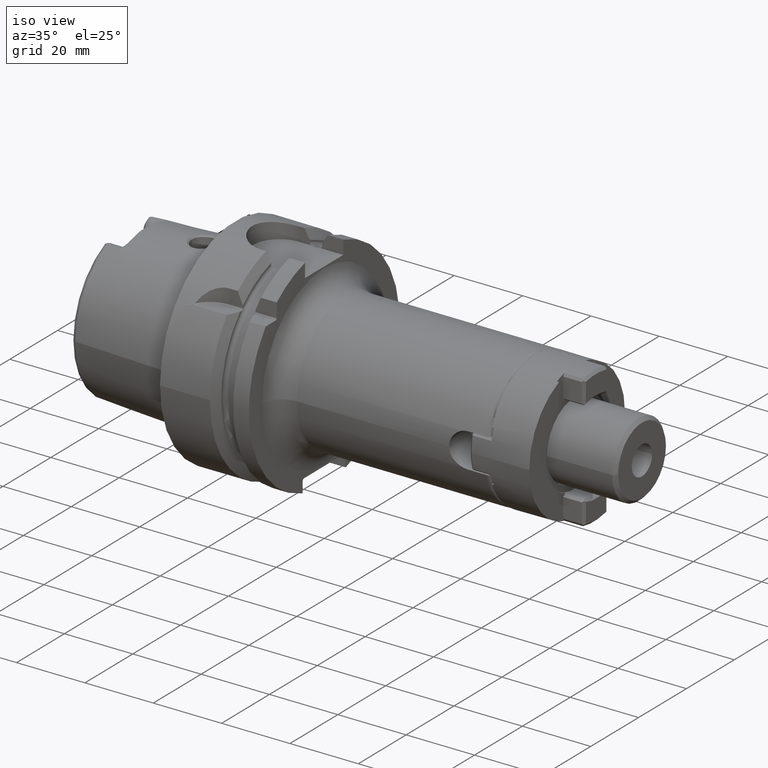
[diagram: clean part render]
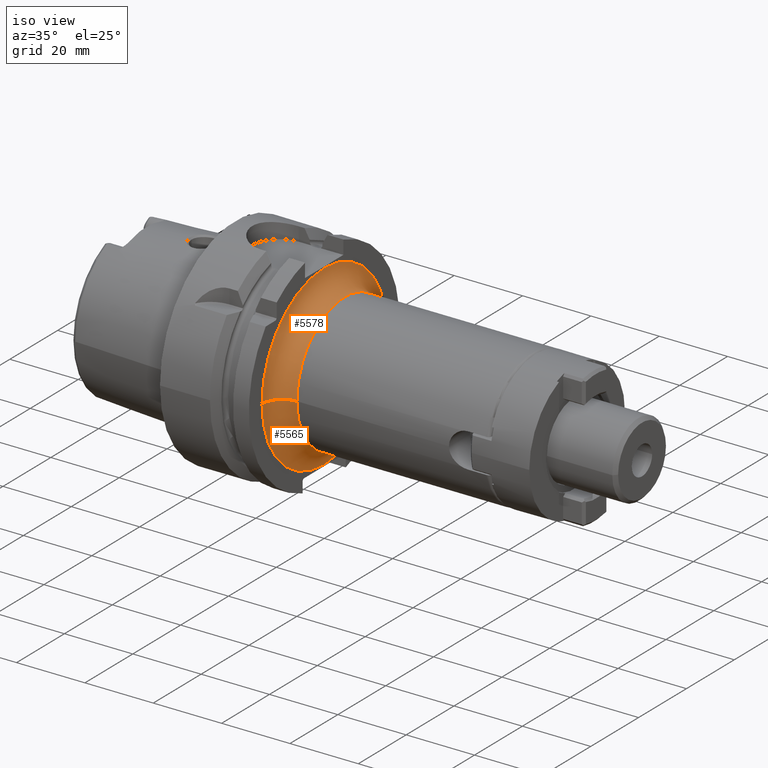
[diagram: same view with one multi-face feature highlighted, each face labeled with its STEP entity id]
A machine part, iso view. The highlighted faces form ONE feature: a constant-radius fillet chain: 2 tangent blend faces with common blend radius 6 mm. The faces share edges in the B-rep.
Their STEP definitions:
[1] entity #5578 (Torus):
#1713=CARTESIAN_POINT('',(2.6E1,0.E0,0.E0));
#1714=DIRECTION('',(1.E0,0.E0,0.E0));
#1715=DIRECTION('',(0.E0,1.E0,0.E0));
#1716=AXIS2_PLACEMENT_3D('',#1713,#1714,#1715);
#1956=CARTESIAN_POINT('',(3.2E1,-2.6E1,3.858163788450E-13));
#1957=DIRECTION('',(0.E0,-1.483925829437E-14,-1.E0));
#1958=DIRECTION('',(-1.E0,0.E0,0.E0));
#1959=AXIS2_PLACEMENT_3D('',#1956,#1957,#1958);
#1961=CARTESIAN_POINT('',(3.2E1,2.6E1,-3.776284840384E-13));
#1962=DIRECTION('',(0.E0,1.452397230262E-14,1.E0));
#1963=DIRECTION('',(-1.E0,0.E0,0.E0));
#1964=AXIS2_PLACEMENT_3D('',#1961,#1962,#1963);
#1982=CARTESIAN_POINT('',(3.2E1,0.E0,0.E0));
#1983=DIRECTION('',(1.E0,0.E0,0.E0));
#1984=DIRECTION('',(0.E0,1.E0,0.E0));
#1985=AXIS2_PLACEMENT_3D('',#1982,#1983,#1984);
#3390=CARTESIAN_POINT('',(2.6E1,-2.6E1,1.672447555664E-14));
#3391=CARTESIAN_POINT('',(2.6E1,2.6E1,-1.990855723442E-14));
#3392=VERTEX_POINT('',#3390);
#3393=VERTEX_POINT('',#3391);
#3394=CARTESIAN_POINT('',(3.2E1,-2.E1,0.E0));
#3395=CARTESIAN_POINT('',(3.2E1,2.E1,0.E0));
#3396=VERTEX_POINT('',#3394);
#3397=VERTEX_POINT('',#3395);
#5566=CARTESIAN_POINT('',(3.2E1,0.E0,0.E0));
#5567=DIRECTION('',(1.E0,0.E0,0.E0));
#5568=DIRECTION('',(0.E0,9.999926110723E-1,-3.844190531823E-3));
#5569=AXIS2_PLACEMENT_3D('',#5566,#5567,#5568);
#5570=TOROIDAL_SURFACE('',#5569,2.6E1,6.E0);
#5571=ORIENTED_EDGE('',*,*,#5260,.F.);
#5572=ORIENTED_EDGE('',*,*,#5561,.T.);
#5574=ORIENTED_EDGE('',*,*,#5573,.T.);
#5575=ORIENTED_EDGE('',*,*,#5557,.F.);
#5576=EDGE_LOOP('',(#5571,#5572,#5574,#5575));
#5577=FACE_OUTER_BOUND('',#5576,.F.);
#5578=ADVANCED_FACE('',(#5577),#5570,.F.);
#1717=CIRCLE('',#1716,2.6E1);
#1960=CIRCLE('',#1959,6.E0);
#1965=CIRCLE('',#1964,6.E0);
#1986=CIRCLE('',#1985,2.E1);
#5260=EDGE_CURVE('',#3393,#3392,#1717,.T.);
#5557=EDGE_CURVE('',#3392,#3396,#1960,.T.);
#5561=EDGE_CURVE('',#3393,#3397,#1965,.T.);
#5573=EDGE_CURVE('',#3397,#3396,#1986,.T.);
[2] entity #5565 (Torus):
#1708=CARTESIAN_POINT('',(2.6E1,0.E0,0.E0));
#1709=DIRECTION('',(1.E0,0.E0,0.E0));
#1710=DIRECTION('',(0.E0,-1.E0,0.E0));
#1711=AXIS2_PLACEMENT_3D('',#1708,#1709,#1710);
#1956=CARTESIAN_POINT('',(3.2E1,-2.6E1,3.858163788450E-13));
#1957=DIRECTION('',(0.E0,-1.483925829437E-14,-1.E0));
#1958=DIRECTION('',(-1.E0,0.E0,0.E0));
#1959=AXIS2_PLACEMENT_3D('',#1956,#1957,#1958);
#1961=CARTESIAN_POINT('',(3.2E1,2.6E1,-3.776284840384E-13));
#1962=DIRECTION('',(0.E0,1.452397230262E-14,1.E0));
#1963=DIRECTION('',(-1.E0,0.E0,0.E0));
#1964=AXIS2_PLACEMENT_3D('',#1961,#1962,#1963);
#2381=CARTESIAN_POINT('',(3.2E1,0.E0,0.E0));
#2382=DIRECTION('',(1.E0,0.E0,0.E0));
#2383=DIRECTION('',(0.E0,-1.E0,0.E0));
#2384=AXIS2_PLACEMENT_3D('',#2381,#2382,#2383);
#3390=CARTESIAN_POINT('',(2.6E1,-2.6E1,1.672447555664E-14));
#3391=CARTESIAN_POINT('',(2.6E1,2.6E1,-1.990855723442E-14));
#3392=VERTEX_POINT('',#3390);
#3393=VERTEX_POINT('',#3391);
#3394=CARTESIAN_POINT('',(3.2E1,-2.E1,0.E0));
#3395=CARTESIAN_POINT('',(3.2E1,2.E1,0.E0));
#3396=VERTEX_POINT('',#3394);
#3397=VERTEX_POINT('',#3395);
#5551=CARTESIAN_POINT('',(3.2E1,0.E0,0.E0));
#5552=DIRECTION('',(1.E0,0.E0,0.E0));
#5553=DIRECTION('',(0.E0,-9.999926110723E-1,3.844190531823E-3));
#5554=AXIS2_PLACEMENT_3D('',#5551,#5552,#5553);
#5555=TOROIDAL_SURFACE('',#5554,2.6E1,6.E0);
#5556=ORIENTED_EDGE('',*,*,#5258,.F.);
#5558=ORIENTED_EDGE('',*,*,#5557,.T.);
#5560=ORIENTED_EDGE('',*,*,#5559,.T.);
#5562=ORIENTED_EDGE('',*,*,#5561,.F.);
#5563=EDGE_LOOP('',(#5556,#5558,#5560,#5562));
#5564=FACE_OUTER_BOUND('',#5563,.F.);
#5565=ADVANCED_FACE('',(#5564),#5555,.F.);
#1712=CIRCLE('',#1711,2.6E1);
#1960=CIRCLE('',#1959,6.E0);
#1965=CIRCLE('',#1964,6.E0);
#2385=CIRCLE('',#2384,2.E1);
#5258=EDGE_CURVE('',#3392,#3393,#1712,.T.);
#5557=EDGE_CURVE('',#3392,#3396,#1960,.T.);
#5559=EDGE_CURVE('',#3396,#3397,#2385,.T.);
#5561=EDGE_CURVE('',#3393,#3397,#1965,.T.);